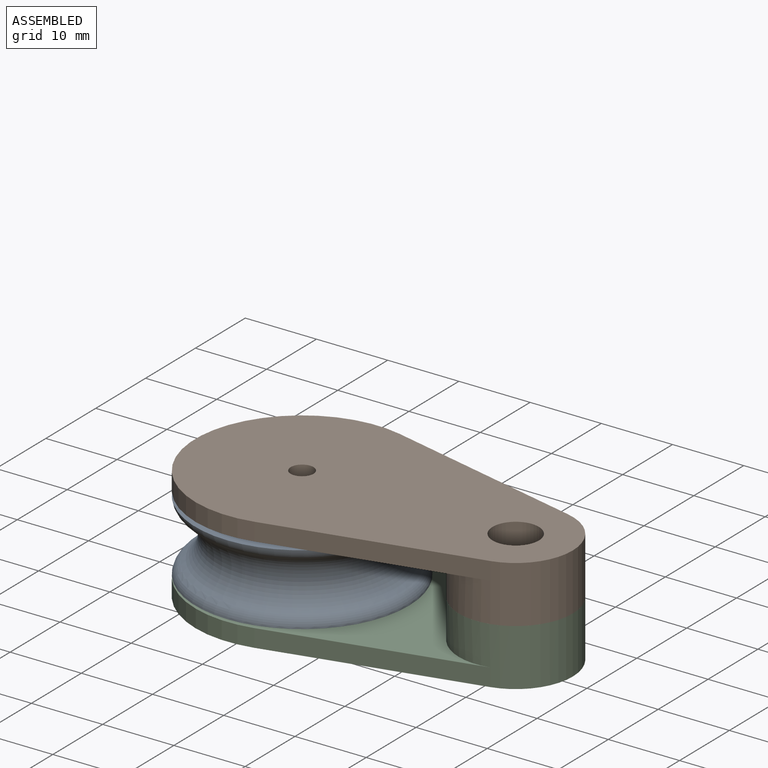
[diagram: assembled view]
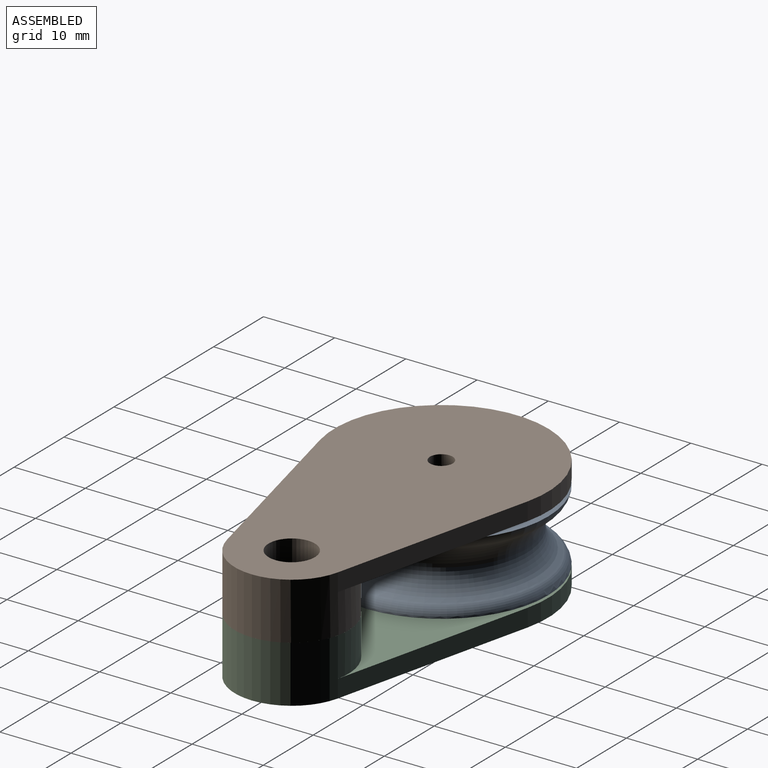
[diagram: assembled view, second angle]
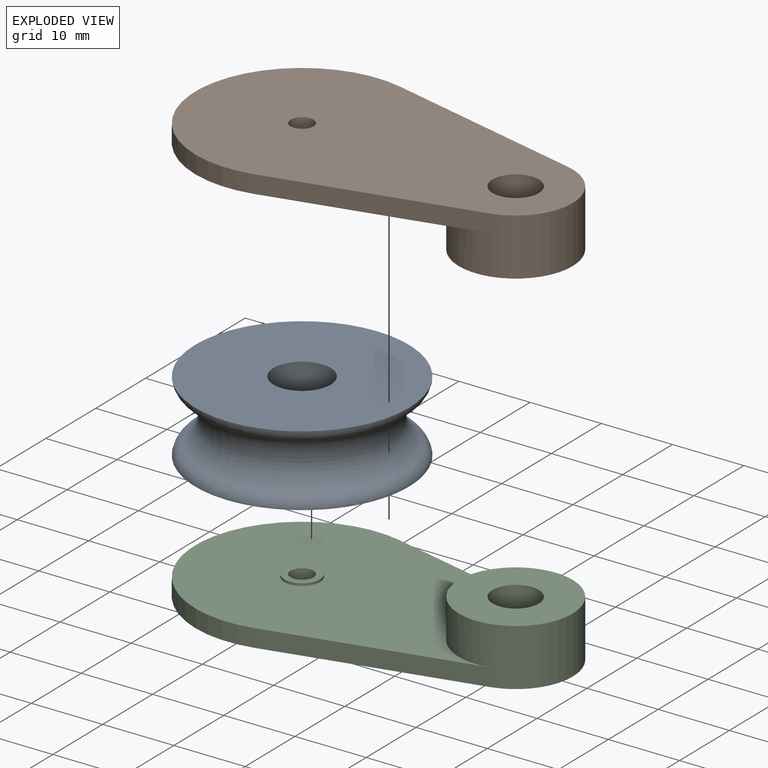
[diagram: exploded view]
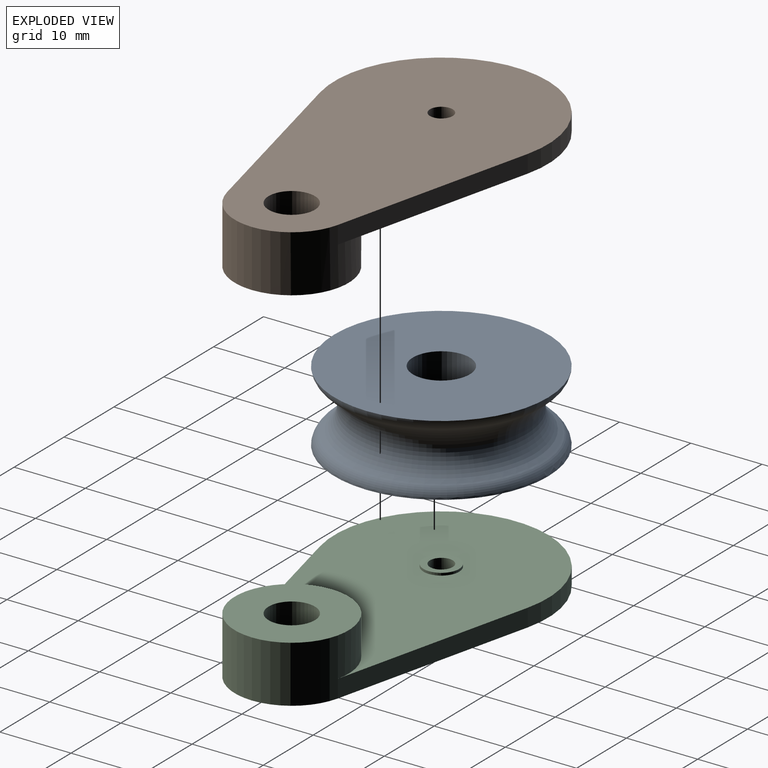
[diagram: exploded view, second angle]
ASSEMBLY  parts=3 mates=2
PART A: 10 faces, bbox 34.6x34.6x10.4 mm
  f0: torus R=16mm, axis (0,0,-1), area 669.5mm2, adj f8,f9
  f1: plane 30x30mm, normal (0,0,-1), area 656.6mm2, adj f2,f8
  f2: cylinder r=4mm len=8mm, axis (0,0,-1), area 100.5mm2, adj f1,f3
  f3: plane 8x8mm, normal (0,0,-1), area 22mm2, adj f2,f4
  f4: cylinder r=3mm len=6mm, axis (0,0,-1), area 37.7mm2, adj f3,f5
  f5: plane 8x8mm, normal (0,0,1), area 22mm2, adj f4,f6
  f6: cylinder r=4mm len=8mm, axis (0,0,-1), area 100.5mm2, adj f5,f7
  f7: plane 30x30mm, normal (0,0,1), area 656.6mm2, adj f6,f9
  f8: torus R=13.01mm, axis (0,0,-1), area 174.2mm2, adj f0,f1
  f9: torus R=13.01mm, axis (0,0,-1), area 174.2mm2, adj f0,f7
PART B: 11 faces, bbox 53x30x8 mm
  f0: plane 28.37x6.81mm, normal (0.23,-0.97,0), area 72.9mm2, adj f1,f5,f6,f7
  f1: cylinder r=8mm len=16mm, axis (0,0,-1), area 329.9mm2, adj f0,f2,f6,f7,f10
  f2: plane 28.37x6.81mm, normal (0.23,0.97,0), area 72.9mm2, adj f1,f5,f6,f7
  f3: cylinder r=1.6mm len=3.2mm, axis (0,0,-1), area 28.7mm2, adj f7,f9
  f4: cylinder r=3.25mm len=8mm, axis (0,0,-1), area 163.4mm2, adj f7,f10
  f5: cylinder r=15mm len=30mm, axis (0,0,-1), area 135.5mm2, adj f0,f2,f6,f7
  f6: plane 46.87x30mm, normal (0,0,1), area 942.1mm2, adj f0,f1,f2,f5,f8
  f7: plane 53x30mm, normal (0,0,-1), area 1121.6mm2, adj f0,f1,f2,f3,f4,f5
  f8: cylinder r=2.5mm len=5mm, axis (0,0,-1), area 5.5mm2, adj f6,f9
  f9: plane 5x5mm, normal (0,0,1), area 11.6mm2, adj f3,f8
  f10: plane 16x16mm, normal (0,0,1), area 167.9mm2, adj f1,f4
PART C: same geometry as B
PLACE A rot(axis=(1,0,0),180deg) t=(0,0,7.85)mm
PLACE B rot(axis=(1,0,0),180deg) t=(0,0,16)mm
PLACE C at identity fixed
MATE fastened A.f0 <-> C.f3  axis (0,0,1) through (0,0,2.85)mm
MATE fastened B.f1 <-> C.f1  axis (0,0,-1) through (30,0,8)mm
